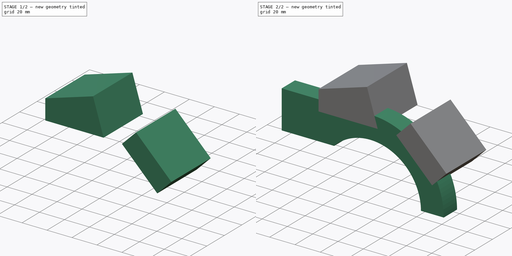
[diagram: build sequence overview — one tinted view per stage of 2, left to right]
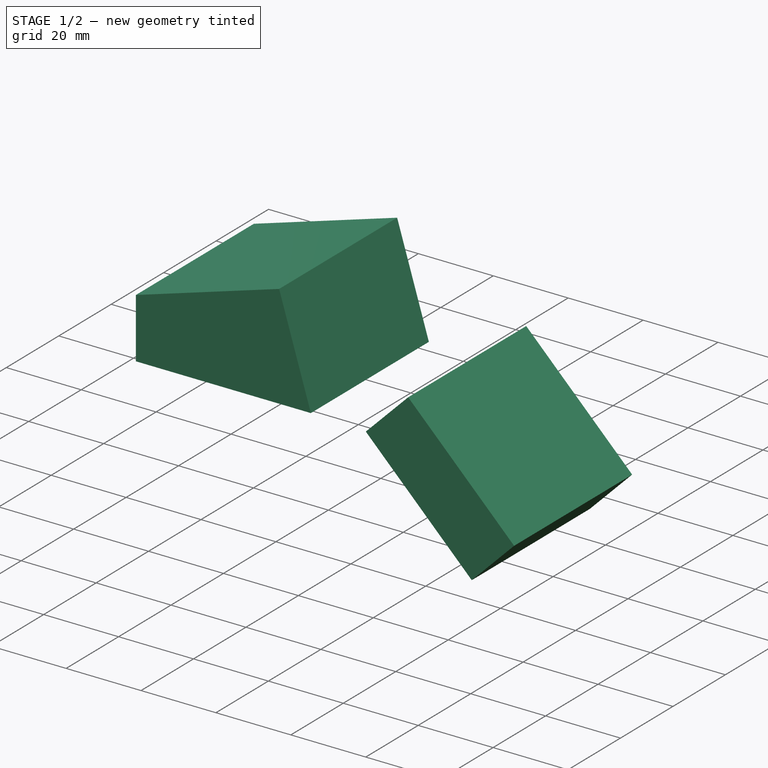
[diagram: stage 1 of 2 — iso view after this stage's code; geometry added in this stage tinted green]
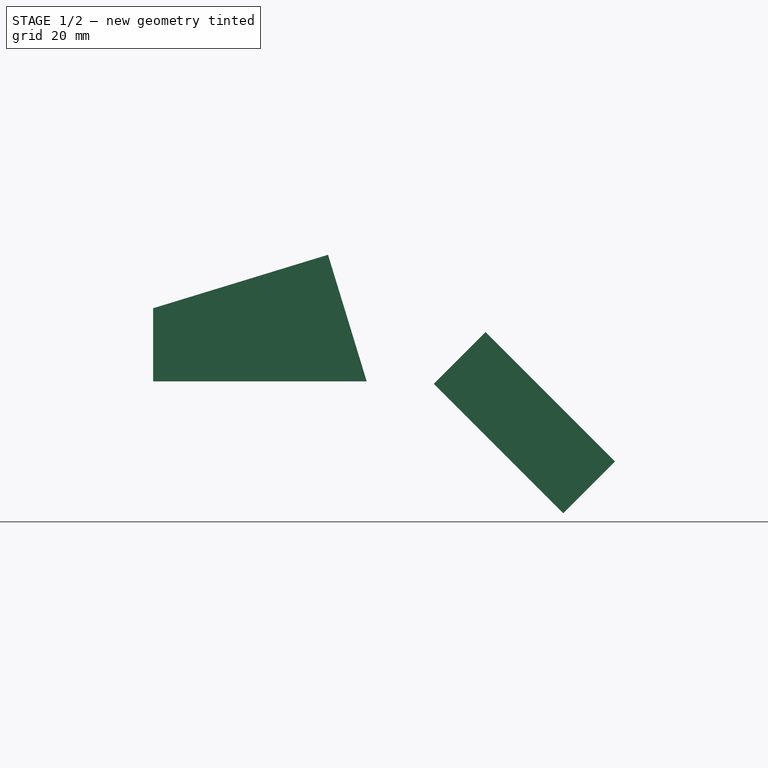
[diagram: stage 1 of 2 — front view after this stage's code; geometry added in this stage tinted green]
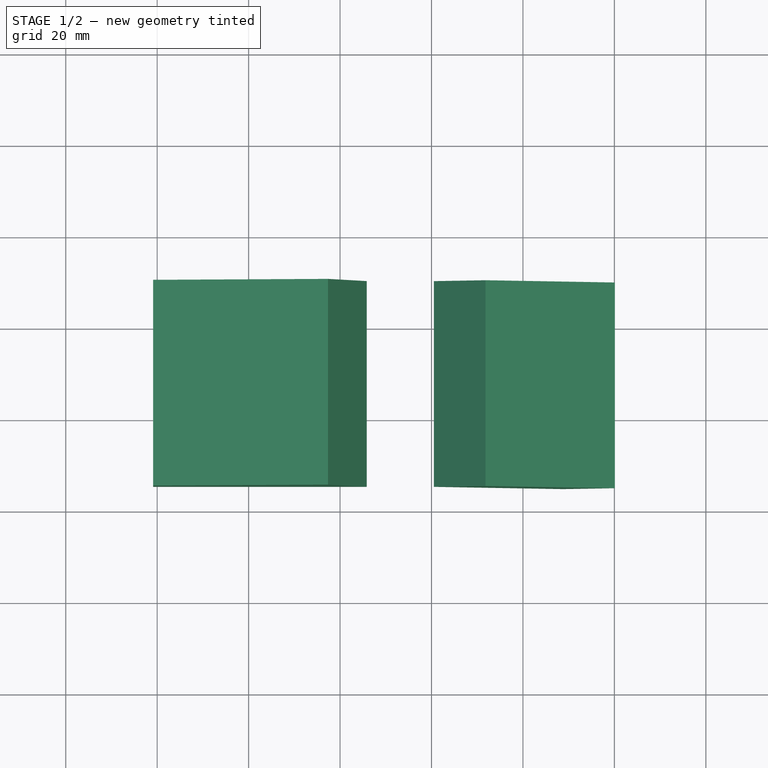
[diagram: stage 1 of 2 — top view after this stage's code; geometry added in this stage tinted green]
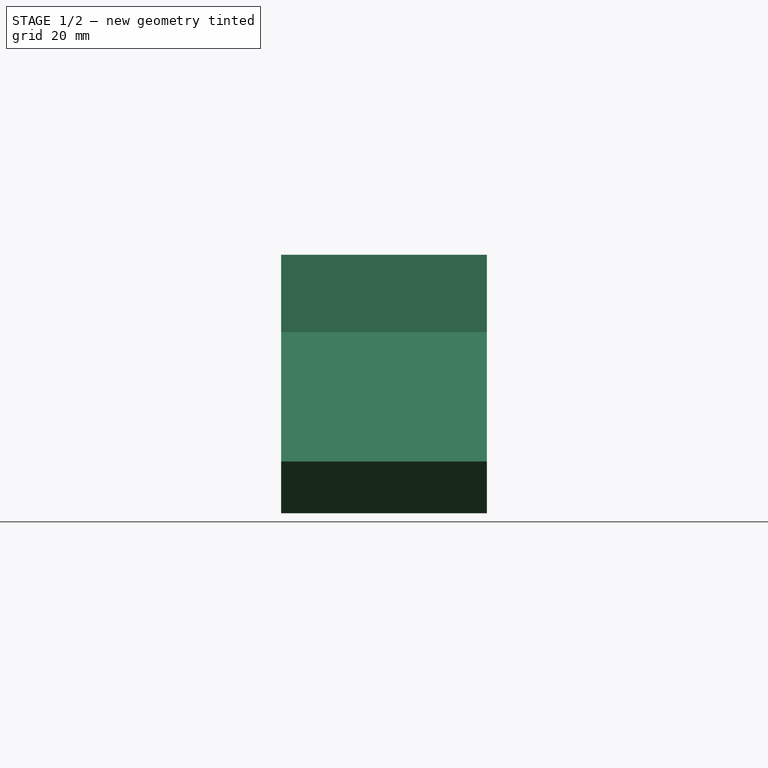
[diagram: stage 1 of 2 — right view after this stage's code; geometry added in this stage tinted green]
FCSTD DOCUMENT  (FreeCAD 0.16R)
Label: CG1
License: All rights reserved
LicenseURL: http://en.wikipedia.org/wiki/All_rights_reserved
objects: Sketcher::SketchObject×2, PartDesign::Pad×2
note: 6 computed .brp shape members not serialized (recipe doc carries the construction recipe); baked Part::Feature solids carry a one-line shape summary decoded from their .brp

FEATURE [Sketcher::SketchObject] Sketch001
  Placement = pos=(0,-10,0) rot=(1,0,0;1.5708rad)
  sketch-geometry (10):
    g0: LineSegment [constr] StartX=0 StartY=0 StartZ=0 EndX=106.066 EndY=106.066 EndZ=0
    g1: LineSegment [constr] StartX=-43.8558 StartY=143.446 StartZ=0 EndX=0 EndY=0 EndZ=0
    g2: LineSegment StartX=-40.8885 StartY=65.3341 StartZ=0 EndX=-2.63627 EndY=77.0289 EndZ=0
    g3: LineSegment StartX=-2.63627 StartY=77.0289 StartZ=0 EndX=5.8309 EndY=49.3341 EndZ=0
    g4: LineSegment StartX=-40.8885 StartY=49.3341 StartZ=0 EndX=-40.8885 EndY=65.3341 EndZ=0
    g5: LineSegment StartX=20.5061 StartY=48.7904 StartZ=0 EndX=48.7904 EndY=20.5061 EndZ=0
    g6: LineSegment StartX=48.7904 StartY=20.5061 StartZ=0 EndX=60.1041 EndY=31.8198 EndZ=0
    g7: LineSegment StartX=60.1041 StartY=31.8198 StartZ=0 EndX=31.8198 EndY=60.1041 EndZ=0
    g8: LineSegment StartX=31.8198 StartY=60.1041 StartZ=0 EndX=20.5061 EndY=48.7904 EndZ=0
    g9: LineSegment StartX=5.8309 StartY=49.3341 StartZ=0 EndX=-40.8885 EndY=49.3341 EndZ=0
  constraints (28):
    c: Coincident(g0,g-1)
    c: Angle(g0) = 0.785398
    c: PointOnObject(g1,g-1)
    c: Coincident(g1,g-1)
    c: Angle(g1) = -1.27409
    c: Distance(g1) = 150
    c: Distance(g0) = 150
    c: Coincident(g2,g3)
    c: Coincident(g5,g6)
    c: Coincident(g6,g7)
    c: Coincident(g7,g8)
    c: Coincident(g8,g5)
    c: Coincident(g4,g2)
    c: Symmetric(g5,g5,g0)
    c: Parallel(g5,g7)
    c: Parallel(g8,g6)
    c: Distance(g7) = 40
    c: Distance(g2) = 40
    c: Distance(g4) = 16
    c: Distance(g6) = 16
    c: Perpendicular(g8,g7)
    c: Distance(g-1,g7) = 65
    c: Symmetric(g2,g2,g1)
    c: Coincident(g9,g3)
    c: Coincident(g9,g4)
    c: Horizontal(g9)
    c: Perpendicular(g2,g3)
    c: Vertical(g4)
FEATURE [PartDesign::Pad] Pad
  Length = 45
  Length2 = 100
  Placement = pos=(0,-10,0) rot=(1,0,0;1.5708rad)
  Sketch = -> Sketch001
  Type = 0
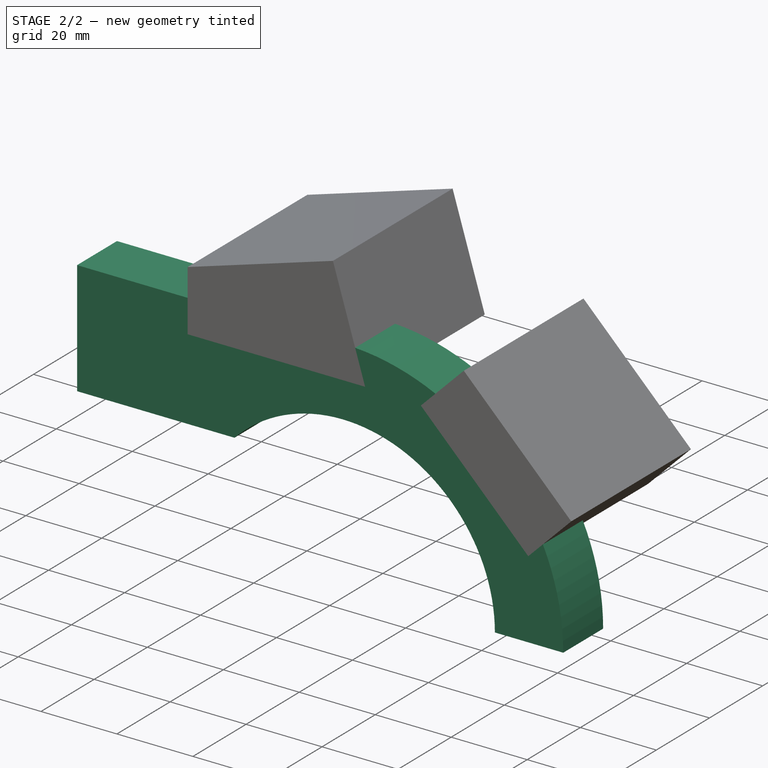
[diagram: stage 2 of 2 — iso view after this stage's code; geometry added in this stage tinted green]
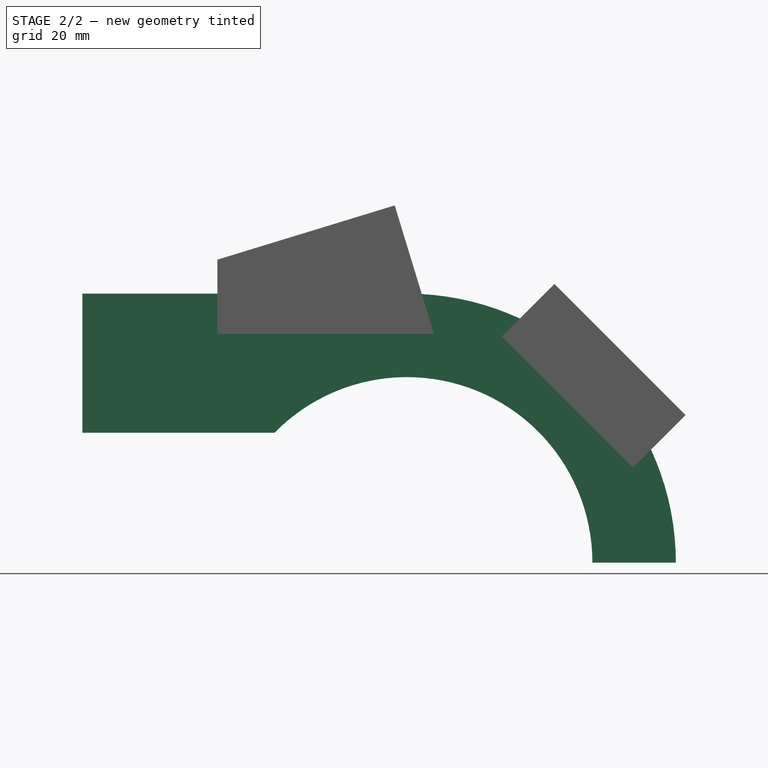
[diagram: stage 2 of 2 — front view after this stage's code; geometry added in this stage tinted green]
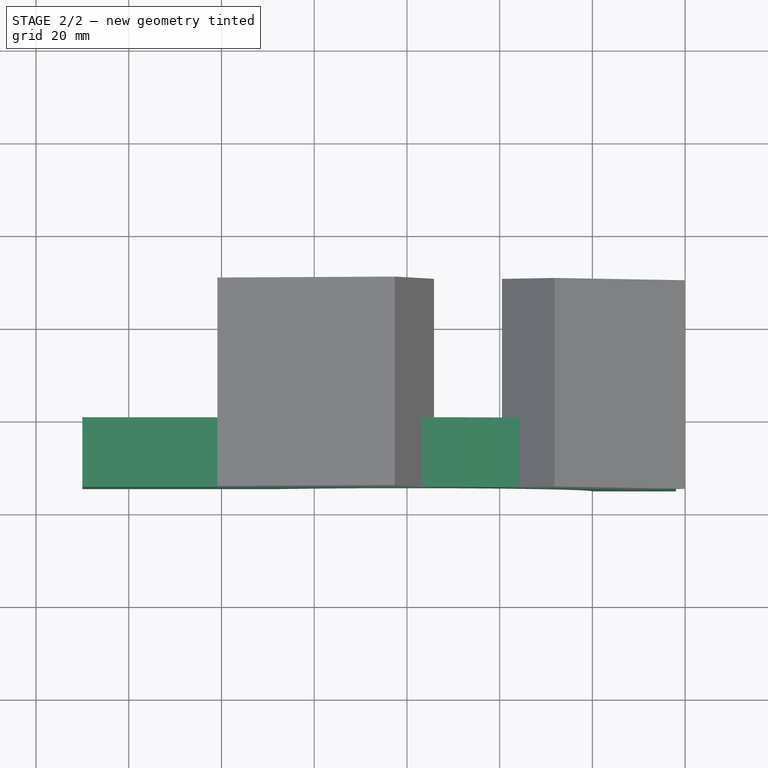
[diagram: stage 2 of 2 — top view after this stage's code; geometry added in this stage tinted green]
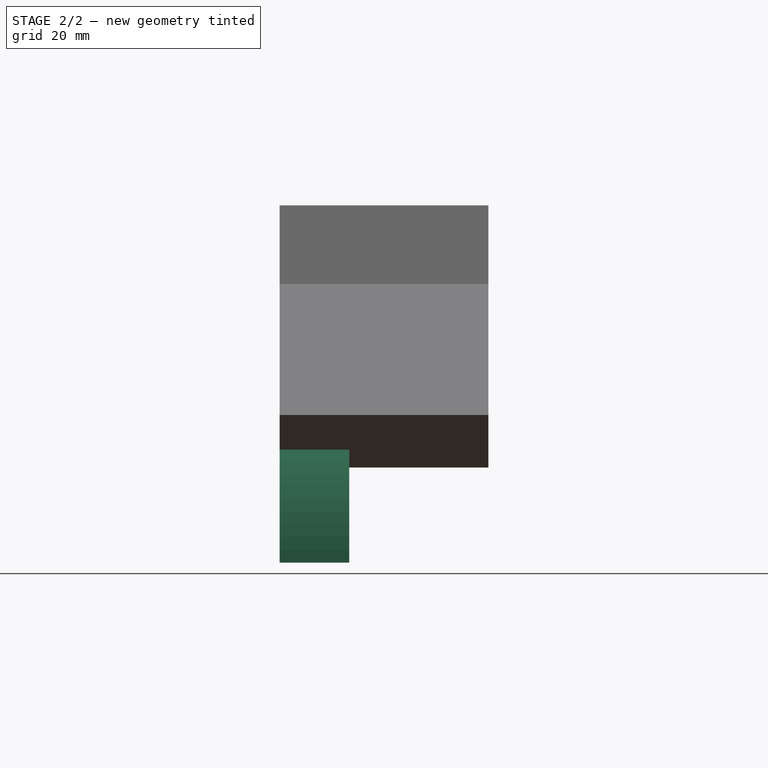
[diagram: stage 2 of 2 — right view after this stage's code; geometry added in this stage tinted green]
FEATURE [Sketcher::SketchObject] Sketch
  Placement = pos=(0,-55,0) rot=(1,0,0;1.5708rad)
  Support = -> Pad [Face12]
  sketch-geometry (6):
    g0: ArcOfCircle CenterX=0 CenterY=0 CenterZ=0 NormalX=0 NormalY=0 NormalZ=1 Radius=40 StartAngle=0 EndAngle=2.3662
    g1: ArcOfCircle CenterX=0 CenterY=0 CenterZ=0 NormalX=0 NormalY=0 NormalZ=1 Radius=58 StartAngle=0 EndAngle=1.5708
    g2: LineSegment StartX=0 StartY=58 StartZ=0 EndX=-70 EndY=58 EndZ=0
    g3: LineSegment StartX=-70 StartY=58 StartZ=0 EndX=-70 EndY=28 EndZ=0
    g4: LineSegment StartX=-70 StartY=28 StartZ=0 EndX=-28.5657 EndY=28 EndZ=0
    g5: LineSegment StartX=40 StartY=0 StartZ=0 EndX=58 EndY=0 EndZ=0
  constraints (17):
    c: Coincident(g0,g-1)
    c: PointOnObject(g0,g-1)
    c: Radius(g0) = 40
    c: Coincident(g1,g-1)
    c: PointOnObject(g1,g-2)
    c: Tangent(g1,g2) = -1.5708
    c: Coincident(g2,g3)
    c: Vertical(g3)
    c: Coincident(g3,g4)
    c: Coincident(g4,g0)
    c: Horizontal(g4)
    c: Distance(g3) = 30
    c: Distance(g2) = 70
    c: Coincident(g5,g0)
    c: Coincident(g5,g1)
    c: Horizontal(g5)
    c: Radius(g1) = 58
FEATURE [PartDesign::Pad] Pad001
  Length = 15
  Length2 = 100
  Placement = pos=(0,-10,0) rot=(1,0,0;1.5708rad)
  Reversed = true
  Sketch = -> Sketch
  Type = 0
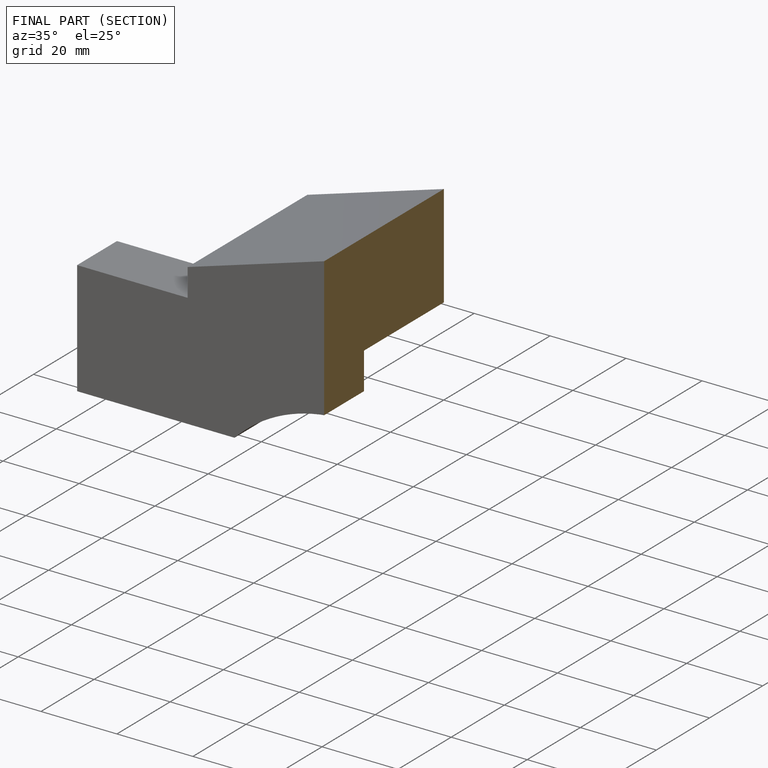
[diagram: finished part — half-section view (interior)]
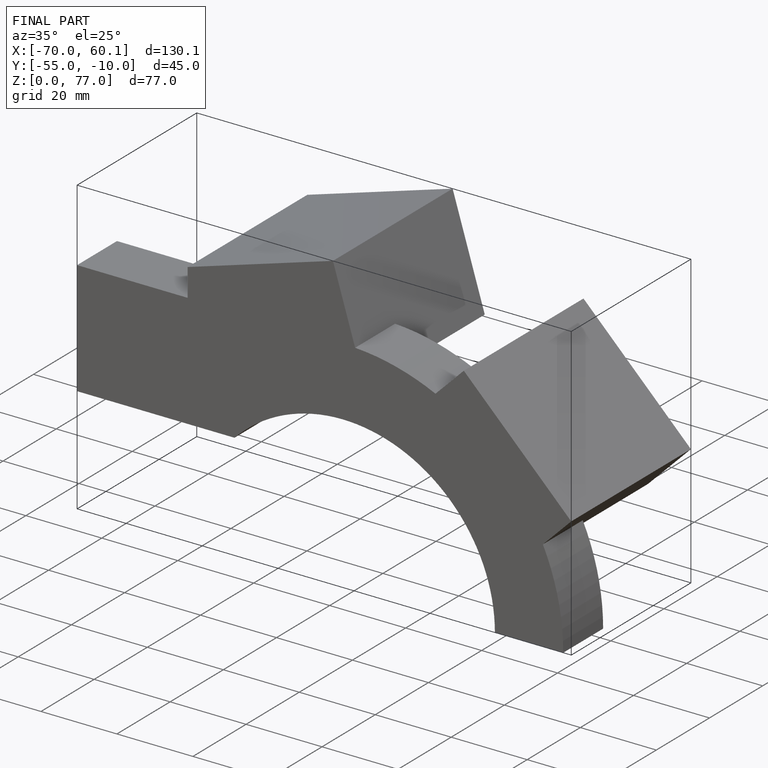
[diagram: finished part — iso view with bounding-box wireframe]
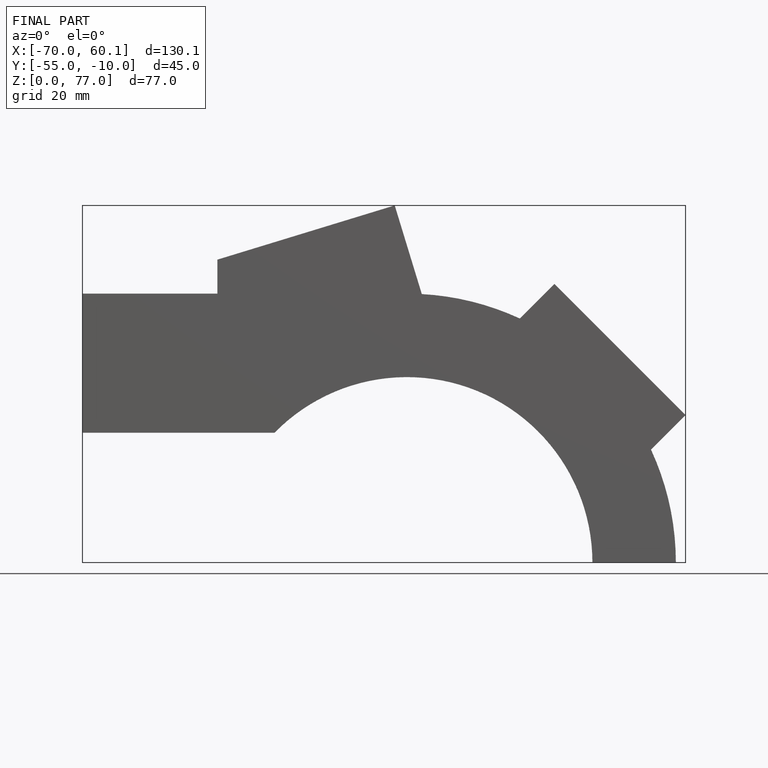
[diagram: finished part — front view with bounding-box wireframe]
